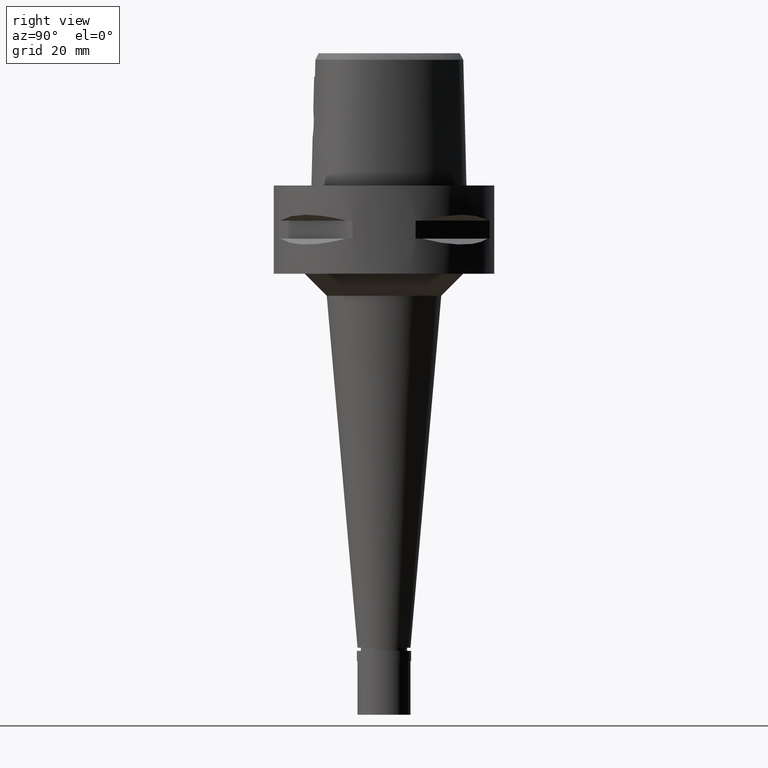
[diagram: clean part render]
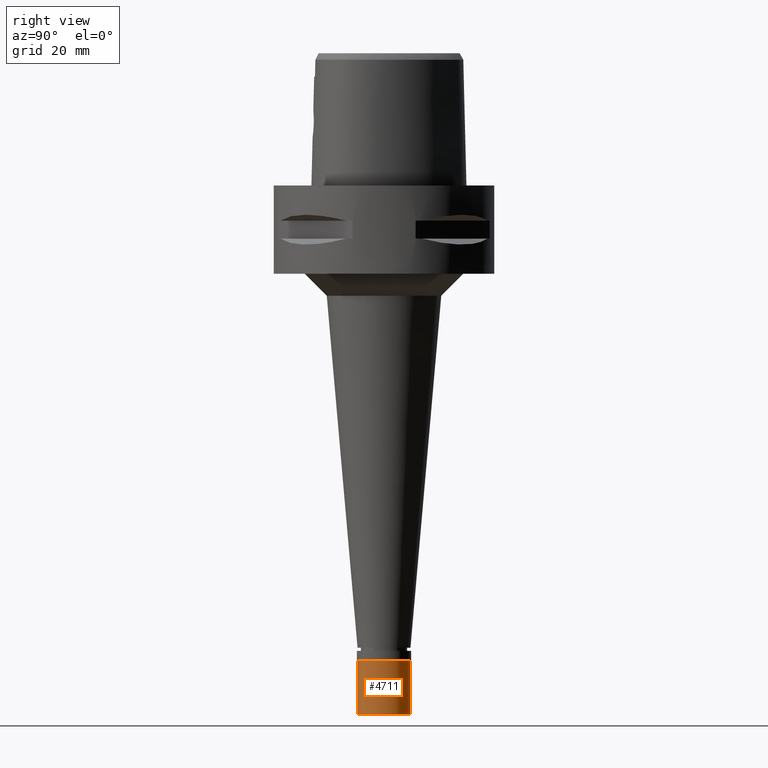
[diagram: same view with one face highlighted and labeled with its STEP entity id]
A machine part, right view. The second image highlights one B-rep face of the part: STEP entity #4711.
In plain terms, the highlighted cylindrical surface (edge-blend (fillet) strip) has radius 6 mm, axis along (0, 0, 1).
Its self-contained STEP definition (entity closure, byte-faithful):
#173 = DIRECTION ( 'NONE',  ( 0.0000000000000000000, 0.0000000000000000000, -1.000000000000000000 ) ) ;
#288 = CARTESIAN_POINT ( 'NONE',  ( 0.0000000000000000000, -6.000000000000000000, -2.299999999999999822 ) ) ;
#319 = EDGE_CURVE ( 'NONE', #3281, #2619, #546, .T. ) ;
#413 = AXIS2_PLACEMENT_3D ( 'NONE', #2589, #2221, #3685 ) ;
#457 = VERTEX_POINT ( 'NONE', #288 ) ;
#545 = CARTESIAN_POINT ( 'NONE',  ( 0.0000000000000000000, 0.0000000000000000000, -14.50000000000000000 ) ) ;
#546 = LINE ( 'NONE', #2021, #4209 ) ;
#635 = CARTESIAN_POINT ( 'NONE',  ( 0.0000000000000000000, -6.000000000000000000, -14.50000000000000000 ) ) ;
#750 = DIRECTION ( 'NONE',  ( 0.0000000000000000000, 1.000000000000000000, 0.0000000000000000000 ) ) ;
#992 = ORIENTED_EDGE ( 'NONE', *, *, #319, .F. ) ;
#1277 = ORIENTED_EDGE ( 'NONE', *, *, #2588, .T. ) ;
#1355 = EDGE_CURVE ( 'NONE', #4116, #2619, #2273, .T. ) ;
#1790 = EDGE_CURVE ( 'NONE', #3281, #457, #4202, .T. ) ;
#1791 = FACE_OUTER_BOUND ( 'NONE', #4541, .T. ) ;
#2021 = CARTESIAN_POINT ( 'NONE',  ( 0.0000000000000000000, 6.000000000000000000, -2.299999999999999822 ) ) ;
#2133 = LINE ( 'NONE', #3244, #2890 ) ;
#2151 = CYLINDRICAL_SURFACE ( 'NONE', #2418, 6.000000000000000000 ) ;
#2154 = CARTESIAN_POINT ( 'NONE',  ( 0.0000000000000000000, 6.000000000000000000, -14.50000000000000000 ) ) ;
#2221 = DIRECTION ( 'NONE',  ( 0.0000000000000000000, 0.0000000000000000000, -1.000000000000000000 ) ) ;
#2273 = CIRCLE ( 'NONE', #2586, 6.000000000000000000 ) ;
#2334 = DIRECTION ( 'NONE',  ( 0.0000000000000000000, 0.0000000000000000000, 1.000000000000000000 ) ) ;
#2418 = AXIS2_PLACEMENT_3D ( 'NONE', #4062, #4748, #750 ) ;
#2474 = DIRECTION ( 'NONE',  ( 0.0000000000000000000, 0.0000000000000000000, -1.000000000000000000 ) ) ;
#2586 = AXIS2_PLACEMENT_3D ( 'NONE', #545, #2334, #4578 ) ;
#2588 = EDGE_CURVE ( 'NONE', #457, #4116, #2133, .T. ) ;
#2589 = CARTESIAN_POINT ( 'NONE',  ( 0.0000000000000000000, 0.0000000000000000000, -2.299999999999999822 ) ) ;
#2619 = VERTEX_POINT ( 'NONE', #2154 ) ;
#2890 = VECTOR ( 'NONE', #2474, 1000.000000000000000 ) ;
#3244 = CARTESIAN_POINT ( 'NONE',  ( 0.0000000000000000000, -6.000000000000000000, -2.299999999999999822 ) ) ;
#3281 = VERTEX_POINT ( 'NONE', #3505 ) ;
#3505 = CARTESIAN_POINT ( 'NONE',  ( 0.0000000000000000000, 6.000000000000000000, -2.299999999999999822 ) ) ;
#3685 = DIRECTION ( 'NONE',  ( 0.0000000000000000000, 1.000000000000000000, 0.0000000000000000000 ) ) ;
#3726 = ORIENTED_EDGE ( 'NONE', *, *, #1355, .T. ) ;
#4060 = ORIENTED_EDGE ( 'NONE', *, *, #1790, .T. ) ;
#4062 = CARTESIAN_POINT ( 'NONE',  ( 0.0000000000000000000, 0.0000000000000000000, -15.22500000000000142 ) ) ;
#4116 = VERTEX_POINT ( 'NONE', #635 ) ;
#4202 = CIRCLE ( 'NONE', #413, 6.000000000000000000 ) ;
#4209 = VECTOR ( 'NONE', #173, 1000.000000000000000 ) ;
#4541 = EDGE_LOOP ( 'NONE', ( #4060, #1277, #3726, #992 ) ) ;
#4578 = DIRECTION ( 'NONE',  ( 0.0000000000000000000, -1.000000000000000000, 0.0000000000000000000 ) ) ;
#4711 = ADVANCED_FACE ( 'NONE', ( #1791 ), #2151, .T. ) ;
#4748 = DIRECTION ( 'NONE',  ( 0.0000000000000000000, 0.0000000000000000000, 1.000000000000000000 ) ) ;